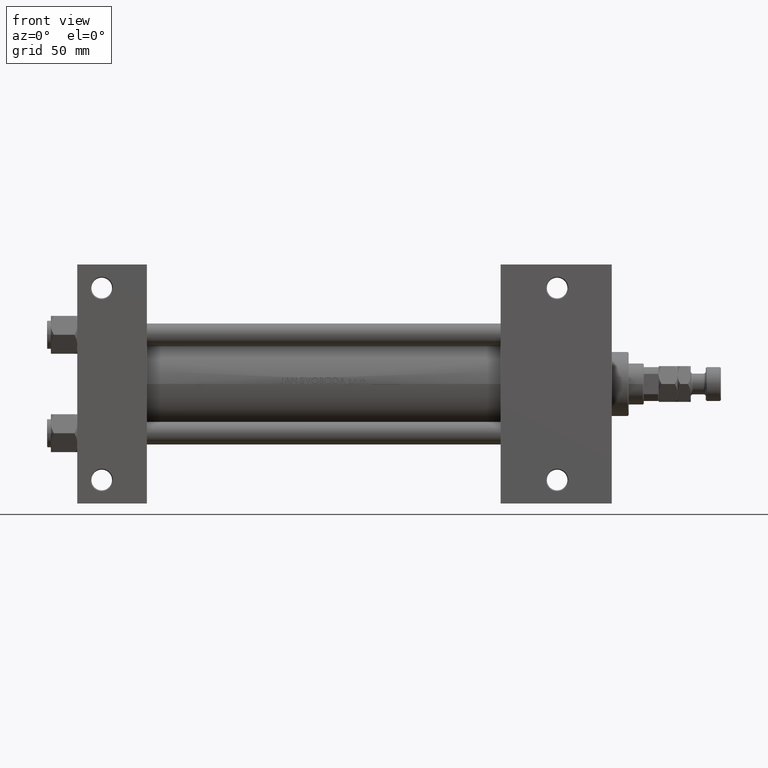
[diagram: clean part render]
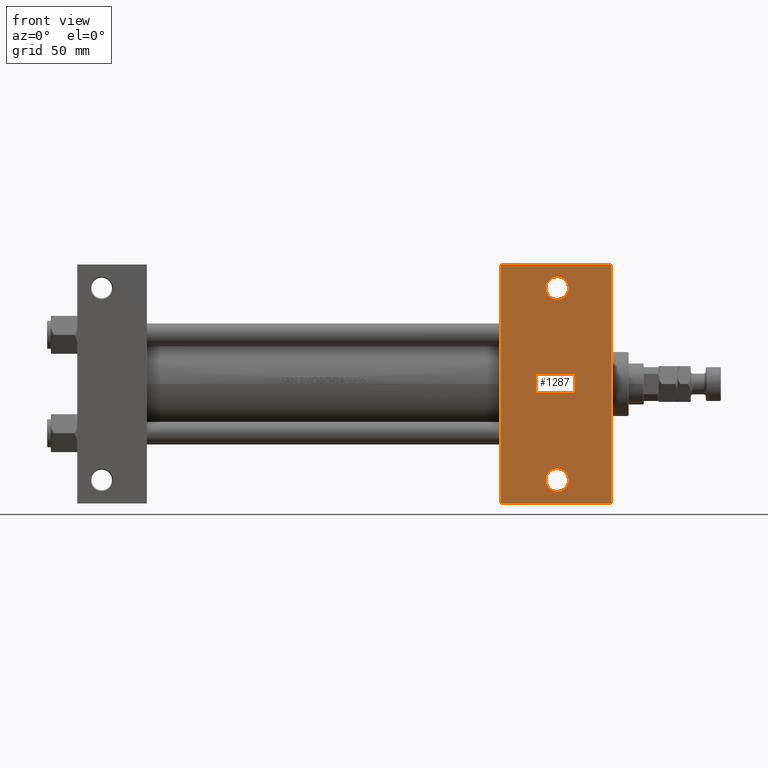
[diagram: same view with one face highlighted and labeled with its STEP entity id]
A machine part, front view. The second image highlights one B-rep face of the part: STEP entity #1287.
In plain terms, the highlighted planar face has unit normal (0, -1, 0).
Its self-contained STEP definition (entity closure, byte-faithful):
#494 = DIRECTION ( 'NONE',  ( -1.000000000000000000, -0.000000000000000000, -0.000000000000000000 ) ) ;
#1185 = EDGE_LOOP ( 'NONE', ( #36437, #48390, #36133, #19270 ) ) ;
#1266 = VERTEX_POINT ( 'NONE', #44418 ) ;
#1287 = ADVANCED_FACE ( 'NONE', ( #34142, #29787, #49789 ), #22351, .T. ) ;
#1601 = CARTESIAN_POINT ( 'NONE',  ( 284.0000000000000568, 63.49999999999997158, -37.50000000000000000 ) ) ;
#2122 = DIRECTION ( 'NONE',  ( -0.000000000000000000, -0.000000000000000000, 1.000000000000000000 ) ) ;
#3133 = CARTESIAN_POINT ( 'NONE',  ( 284.0000000000000568, 37.50000000000000000, -37.50000000000000000 ) ) ;
#4777 = LINE ( 'NONE', #48589, #46597 ) ;
#6565 = EDGE_CURVE ( 'NONE', #17905, #33098, #26468, .T. ) ;
#6798 = EDGE_LOOP ( 'NONE', ( #31504, #39921 ) ) ;
#7126 = DIRECTION ( 'NONE',  ( 0.000000000000000000, -1.000000000000000000, 0.000000000000000000 ) ) ;
#7533 = AXIS2_PLACEMENT_3D ( 'NONE', #10840, #19780, #11601 ) ;
#8360 = CARTESIAN_POINT ( 'NONE',  ( 260.9995000000000118, 51.00000000000000000, -37.50000000000000000 ) ) ;
#8680 = DIRECTION ( 'NONE',  ( -1.000000000000000000, 0.000000000000000000, 0.000000000000000000 ) ) ;
#9216 = VERTEX_POINT ( 'NONE', #22810 ) ;
#9250 = AXIS2_PLACEMENT_3D ( 'NONE', #41306, #2122, #41048 ) ;
#10840 = CARTESIAN_POINT ( 'NONE',  ( 255.0000000000000000, -51.00000000000000000, -37.50000000000000000 ) ) ;
#10996 = VERTEX_POINT ( 'NONE', #47802 ) ;
#11493 = CARTESIAN_POINT ( 'NONE',  ( 225.0000000000000000, -63.50000000000002842, -37.50000000000000000 ) ) ;
#11601 = DIRECTION ( 'NONE',  ( -1.000000000000000000, 0.000000000000000000, 0.000000000000000000 ) ) ;
#12256 = LINE ( 'NONE', #11493, #37170 ) ;
#13102 = CARTESIAN_POINT ( 'NONE',  ( 225.0000000000000000, 37.50000000000000000, -37.50000000000000000 ) ) ;
#14591 = ORIENTED_EDGE ( 'NONE', *, *, #6565, .T. ) ;
#15166 = EDGE_CURVE ( 'NONE', #10996, #33478, #4777, .T. ) ;
#15410 = VECTOR ( 'NONE', #24618, 1000.000000000000000 ) ;
#15841 = AXIS2_PLACEMENT_3D ( 'NONE', #42063, #46666, #24109 ) ;
#16852 = EDGE_LOOP ( 'NONE', ( #48947, #14591 ) ) ;
#17416 = EDGE_CURVE ( 'NONE', #10996, #37027, #35906, .T. ) ;
#17905 = VERTEX_POINT ( 'NONE', #8360 ) ;
#19270 = ORIENTED_EDGE ( 'NONE', *, *, #46913, .T. ) ;
#19780 = DIRECTION ( 'NONE',  ( -0.000000000000000000, -0.000000000000000000, 1.000000000000000000 ) ) ;
#21454 = CARTESIAN_POINT ( 'NONE',  ( 255.0000000000000000, 51.00000000000000000, -37.50000000000000000 ) ) ;
#22351 = PLANE ( 'NONE',  #30486 ) ;
#22810 = CARTESIAN_POINT ( 'NONE',  ( 249.0005000000000166, -51.00000000000000000, -37.50000000000000000 ) ) ;
#24109 = DIRECTION ( 'NONE',  ( -1.000000000000000000, 0.000000000000000000, 0.000000000000000000 ) ) ;
#24618 = DIRECTION ( 'NONE',  ( 0.000000000000000000, -1.000000000000000000, 0.000000000000000000 ) ) ;
#24867 = AXIS2_PLACEMENT_3D ( 'NONE', #21454, #32997, #8680 ) ;
#26468 = CIRCLE ( 'NONE', #15841, 5.999499999999990507 ) ;
#26936 = DIRECTION ( 'NONE',  ( 0.000000000000000000, 0.000000000000000000, -1.000000000000000000 ) ) ;
#27099 = CARTESIAN_POINT ( 'NONE',  ( 249.0005000000000166, 51.00000000000000000, -37.50000000000000000 ) ) ;
#29468 = VERTEX_POINT ( 'NONE', #39663 ) ;
#29787 = FACE_BOUND ( 'NONE', #6798, .T. ) ;
#30486 = AXIS2_PLACEMENT_3D ( 'NONE', #3133, #26936, #42321 ) ;
#31504 = ORIENTED_EDGE ( 'NONE', *, *, #47818, .T. ) ;
#32997 = DIRECTION ( 'NONE',  ( -0.000000000000000000, -0.000000000000000000, 1.000000000000000000 ) ) ;
#33098 = VERTEX_POINT ( 'NONE', #27099 ) ;
#33478 = VERTEX_POINT ( 'NONE', #1601 ) ;
#34142 = FACE_BOUND ( 'NONE', #16852, .T. ) ;
#35481 = CIRCLE ( 'NONE', #24867, 5.999499999999990507 ) ;
#35906 = LINE ( 'NONE', #13102, #15410 ) ;
#36133 = ORIENTED_EDGE ( 'NONE', *, *, #40718, .T. ) ;
#36437 = ORIENTED_EDGE ( 'NONE', *, *, #17416, .F. ) ;
#36782 = DIRECTION ( 'NONE',  ( 1.000000000000000000, -4.704334850106595794E-16, 0.000000000000000000 ) ) ;
#37027 = VERTEX_POINT ( 'NONE', #44635 ) ;
#37170 = VECTOR ( 'NONE', #494, 1000.000000000000000 ) ;
#37712 = VECTOR ( 'NONE', #7126, 1000.000000000000000 ) ;
#37783 = CIRCLE ( 'NONE', #7533, 5.999499999999990507 ) ;
#39663 = CARTESIAN_POINT ( 'NONE',  ( 260.9995000000000118, -51.00000000000000000, -37.50000000000000000 ) ) ;
#39921 = ORIENTED_EDGE ( 'NONE', *, *, #42196, .T. ) ;
#40718 = EDGE_CURVE ( 'NONE', #33478, #1266, #46075, .T. ) ;
#41048 = DIRECTION ( 'NONE',  ( -1.000000000000000000, 0.000000000000000000, 0.000000000000000000 ) ) ;
#41306 = CARTESIAN_POINT ( 'NONE',  ( 255.0000000000000000, -51.00000000000000000, -37.50000000000000000 ) ) ;
#42063 = CARTESIAN_POINT ( 'NONE',  ( 255.0000000000000000, 51.00000000000000000, -37.50000000000000000 ) ) ;
#42196 = EDGE_CURVE ( 'NONE', #29468, #9216, #37783, .T. ) ;
#42321 = DIRECTION ( 'NONE',  ( -1.000000000000000000, 0.000000000000000000, -0.000000000000000000 ) ) ;
#44418 = CARTESIAN_POINT ( 'NONE',  ( 284.0000000000000568, -63.50000000000002842, -37.50000000000000000 ) ) ;
#44443 = CIRCLE ( 'NONE', #9250, 5.999499999999990507 ) ;
#44635 = CARTESIAN_POINT ( 'NONE',  ( 225.0000000000000000, -63.50000000000002842, -37.50000000000000000 ) ) ;
#45059 = CARTESIAN_POINT ( 'NONE',  ( 284.0000000000000568, 37.50000000000000000, -37.50000000000000000 ) ) ;
#45986 = EDGE_CURVE ( 'NONE', #33098, #17905, #35481, .T. ) ;
#46075 = LINE ( 'NONE', #45059, #37712 ) ;
#46597 = VECTOR ( 'NONE', #36782, 1000.000000000000000 ) ;
#46666 = DIRECTION ( 'NONE',  ( -0.000000000000000000, -0.000000000000000000, 1.000000000000000000 ) ) ;
#46913 = EDGE_CURVE ( 'NONE', #1266, #37027, #12256, .T. ) ;
#47802 = CARTESIAN_POINT ( 'NONE',  ( 225.0000000000000284, 63.50000000000000000, -37.50000000000000000 ) ) ;
#47818 = EDGE_CURVE ( 'NONE', #9216, #29468, #44443, .T. ) ;
#48390 = ORIENTED_EDGE ( 'NONE', *, *, #15166, .T. ) ;
#48589 = CARTESIAN_POINT ( 'NONE',  ( 225.0000000000000284, 63.50000000000000000, -37.50000000000000000 ) ) ;
#48947 = ORIENTED_EDGE ( 'NONE', *, *, #45986, .T. ) ;
#49789 = FACE_OUTER_BOUND ( 'NONE', #1185, .T. ) ;